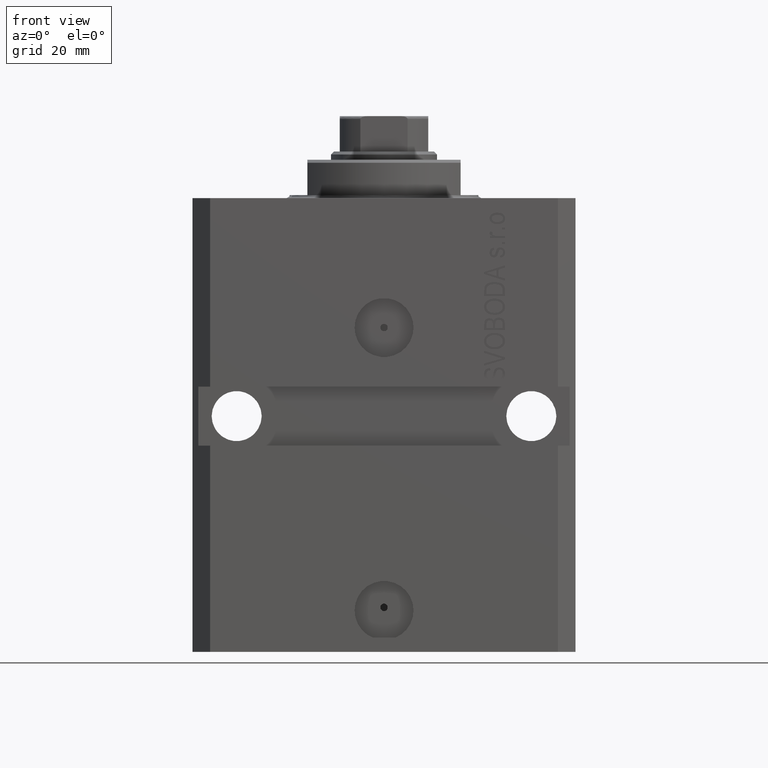
[diagram: clean part render]
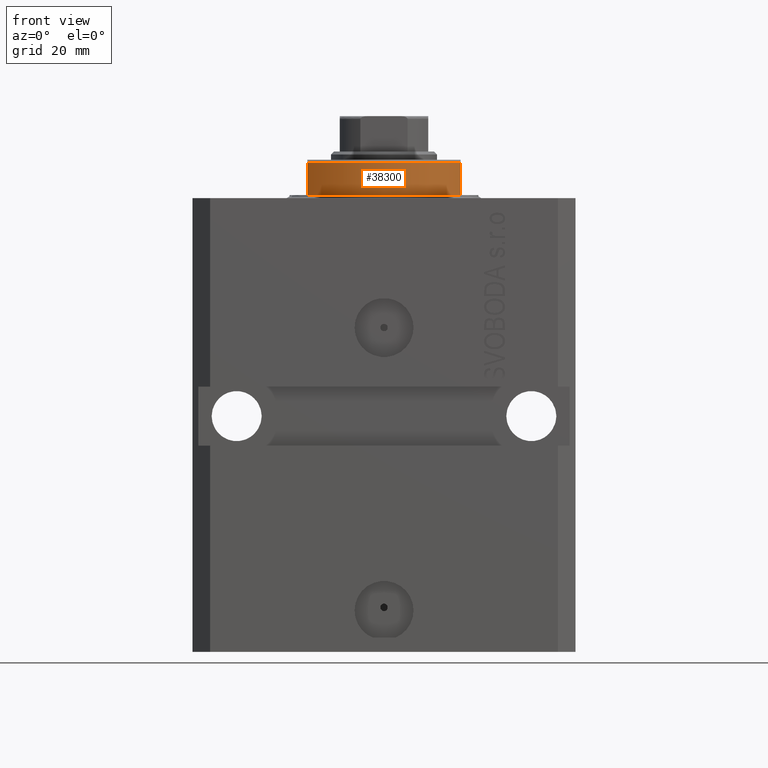
[diagram: same view with one face highlighted and labeled with its STEP entity id]
A machine part, front view. The second image highlights one B-rep face of the part: STEP entity #38300.
In plain terms, the highlighted cylindrical surface (partial cylindrical patch) has radius 16 mm, axis along (0, 0, -1).
Its self-contained STEP definition (entity closure, byte-faithful):
#1076 = VERTEX_POINT ( 'NONE', #7469 ) ;
#1515 = AXIS2_PLACEMENT_3D ( 'NONE', #19954, #35342, #34636 ) ;
#3009 = EDGE_CURVE ( 'NONE', #25910, #1076, #41976, .T. ) ;
#3673 = CYLINDRICAL_SURFACE ( 'NONE', #32529, 16.00000000000000000 ) ;
#3911 = DIRECTION ( 'NONE',  ( 1.000000000000000000, 0.000000000000000000, 0.000000000000000000 ) ) ;
#5085 = ORIENTED_EDGE ( 'NONE', *, *, #13005, .T. ) ;
#5478 = CARTESIAN_POINT ( 'NONE',  ( -13.00000000000000000, -9.327379053088815652, -0.4999999999999995559 ) ) ;
#6927 = CIRCLE ( 'NONE', #1515, 16.00000000000000000 ) ;
#7057 = CARTESIAN_POINT ( 'NONE',  ( 13.00000000000000000, -9.327379053088815652, -0.4999999999999995559 ) ) ;
#7469 = CARTESIAN_POINT ( 'NONE',  ( -13.00000000000000000, -9.327379053088815652, -6.000000000000030198 ) ) ;
#10924 = FACE_OUTER_BOUND ( 'NONE', #43628, .T. ) ;
#12018 = VERTEX_POINT ( 'NONE', #36203 ) ;
#13005 = EDGE_CURVE ( 'NONE', #1076, #12018, #6927, .T. ) ;
#15689 = EDGE_CURVE ( 'NONE', #20160, #25910, #38566, .T. ) ;
#18849 = DIRECTION ( 'NONE',  ( -0.000000000000000000, -0.000000000000000000, -1.000000000000000000 ) ) ;
#18889 = CARTESIAN_POINT ( 'NONE',  ( 0.000000000000000000, 0.000000000000000000, -6.500000000000000000 ) ) ;
#19324 = DIRECTION ( 'NONE',  ( 0.000000000000000000, 0.000000000000000000, -1.000000000000000000 ) ) ;
#19954 = CARTESIAN_POINT ( 'NONE',  ( 0.000000000000000000, 0.000000000000000000, -6.000000000000030198 ) ) ;
#20160 = VERTEX_POINT ( 'NONE', #7057 ) ;
#21982 = VECTOR ( 'NONE', #47318, 1000.000000000000000 ) ;
#25910 = VERTEX_POINT ( 'NONE', #5478 ) ;
#26056 = DIRECTION ( 'NONE',  ( 1.000000000000000000, 0.000000000000000000, 0.000000000000000000 ) ) ;
#26082 = CARTESIAN_POINT ( 'NONE',  ( 13.00000000000000000, -9.327379053088813876, -6.500000000000000000 ) ) ;
#32529 = AXIS2_PLACEMENT_3D ( 'NONE', #18889, #47099, #3911 ) ;
#34636 = DIRECTION ( 'NONE',  ( -1.000000000000000000, 0.000000000000000000, 0.000000000000000000 ) ) ;
#35199 = VECTOR ( 'NONE', #19324, 1000.000000000000000 ) ;
#35342 = DIRECTION ( 'NONE',  ( 0.000000000000000000, 0.000000000000000000, 1.000000000000000000 ) ) ;
#35382 = ORIENTED_EDGE ( 'NONE', *, *, #15689, .T. ) ;
#36203 = CARTESIAN_POINT ( 'NONE',  ( 13.00000000000000000, -9.327379053088815652, -6.000000000000030198 ) ) ;
#37626 = CARTESIAN_POINT ( 'NONE',  ( -13.00000000000000000, -9.327379053088813876, -6.500000000000000000 ) ) ;
#37694 = ORIENTED_EDGE ( 'NONE', *, *, #45043, .F. ) ;
#38300 = ADVANCED_FACE ( 'NONE', ( #10924 ), #3673, .T. ) ;
#38566 = CIRCLE ( 'NONE', #44718, 16.00000000000000000 ) ;
#40571 = LINE ( 'NONE', #26082, #21982 ) ;
#41976 = LINE ( 'NONE', #37626, #35199 ) ;
#43628 = EDGE_LOOP ( 'NONE', ( #37694, #35382, #45211, #5085 ) ) ;
#43908 = CARTESIAN_POINT ( 'NONE',  ( 0.000000000000000000, 0.000000000000000000, -0.4999999999999995559 ) ) ;
#44718 = AXIS2_PLACEMENT_3D ( 'NONE', #43908, #18849, #26056 ) ;
#45043 = EDGE_CURVE ( 'NONE', #20160, #12018, #40571, .T. ) ;
#45211 = ORIENTED_EDGE ( 'NONE', *, *, #3009, .T. ) ;
#47099 = DIRECTION ( 'NONE',  ( -0.000000000000000000, -0.000000000000000000, 1.000000000000000000 ) ) ;
#47318 = DIRECTION ( 'NONE',  ( 0.000000000000000000, 0.000000000000000000, -1.000000000000000000 ) ) ;